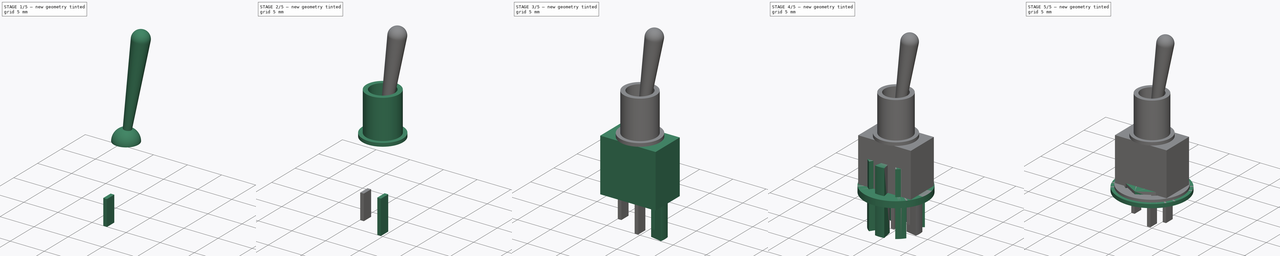
[diagram: build sequence overview — one tinted view per stage of 5, left to right]
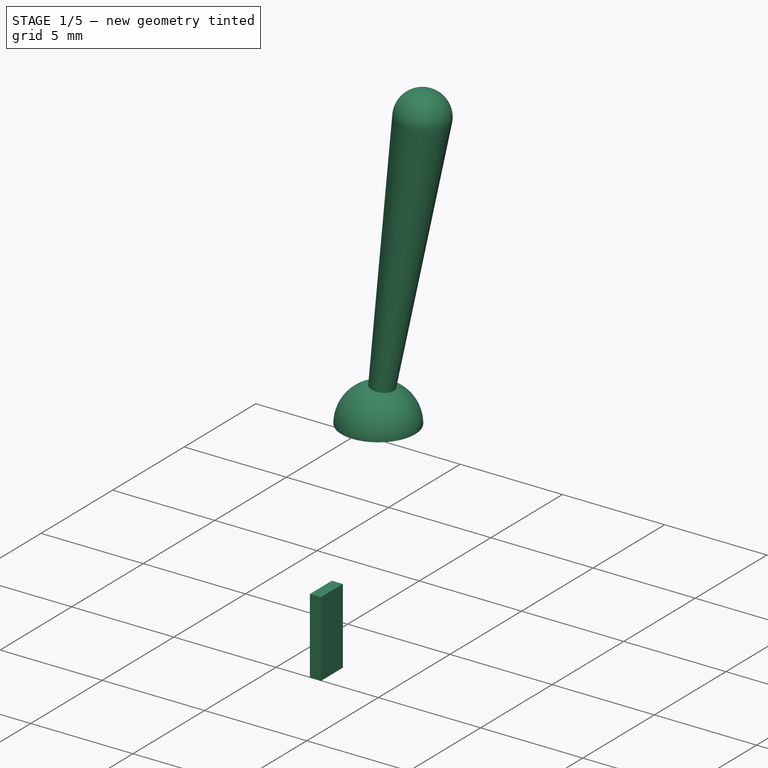
[diagram: stage 1 of 5 — iso view after this stage's code; geometry added in this stage tinted green]
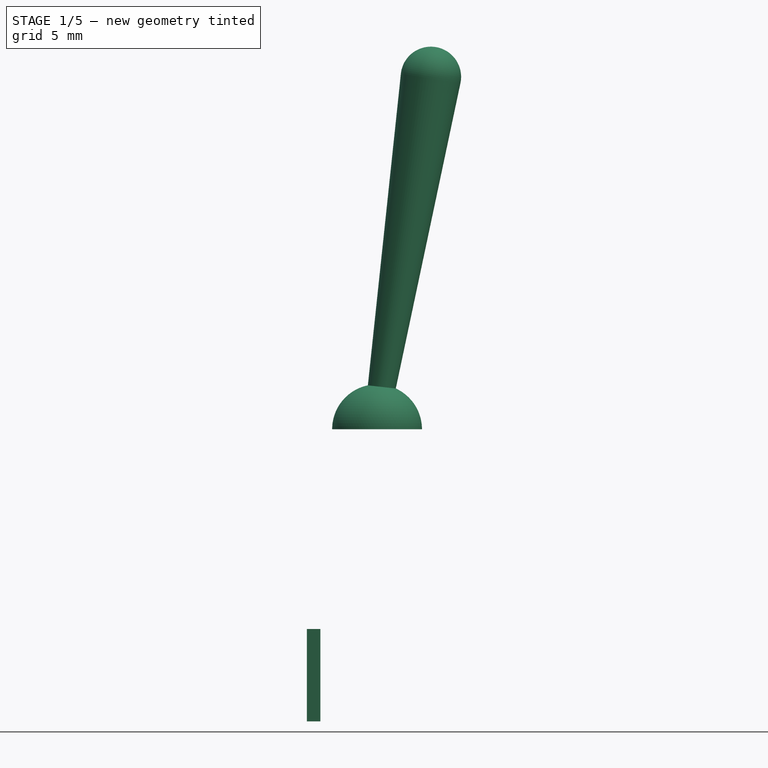
[diagram: stage 1 of 5 — front view after this stage's code; geometry added in this stage tinted green]
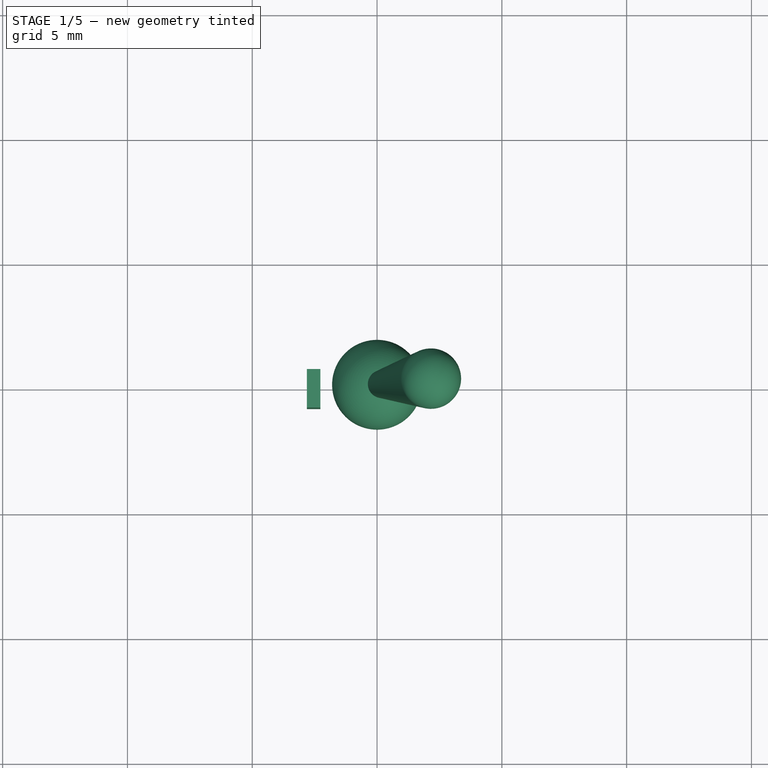
[diagram: stage 1 of 5 — top view after this stage's code; geometry added in this stage tinted green]
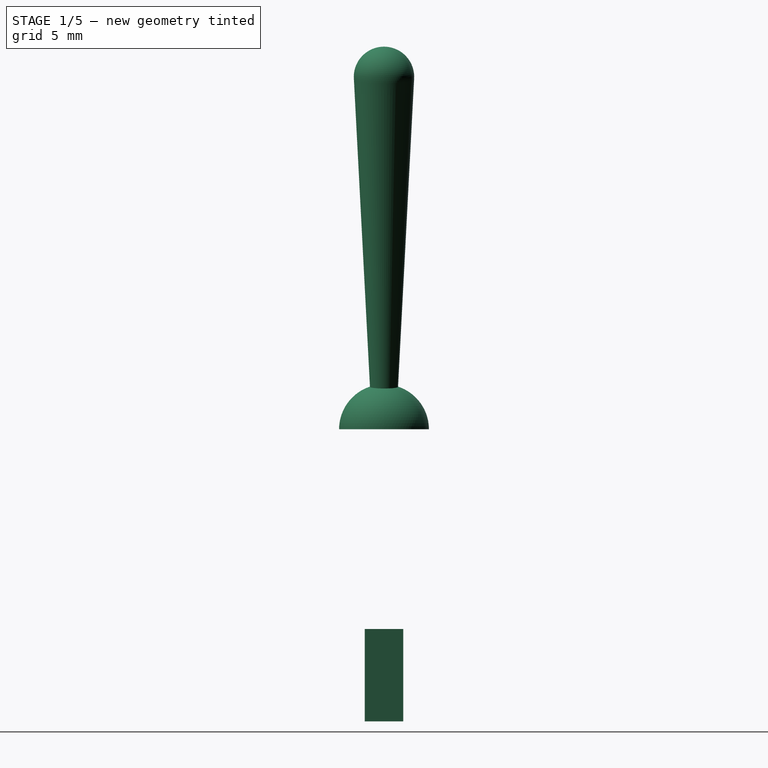
[diagram: stage 1 of 5 — right view after this stage's code; geometry added in this stage tinted green]
FCSTD DOCUMENT  (FreeCAD 0.17R13541 (Git))
Label: Interruptor 250VAC 1A
License: CreativeCommons Attribution
LicenseURL: http://creativecommons.org/licenses/by/4.0/
objects: Sketcher::SketchObject×7, PartDesign::Body×5, Part::Feature×5, PartDesign::Pad×4, Part::Cylinder×4, Part::Box×3, Part::Cut×3, PartDesign::Pocket×2, PartDesign::ShapeBinder×1, Part::Mirroring×1, Part::Sphere×1, PartDesign::Revolution×1, Part::FeaturePython×1, Part::MultiFuse×1, App::DocumentObjectGroup×1
note: 46 computed .brp shape members not serialized (recipe doc carries the construction recipe); baked Part::Feature solids carry a one-line shape summary decoded from their .brp

FEATURE [Part::Box] Box002  label="polo lateral master"
  AttacherType = Attacher::AttachEngine3D
  Height = 3.7
  Length = 0.54
  Placement = pos=(2.27,-0.77,-3.7) rot=(0,0,1;0rad)
  Width = 1.54
FEATURE [Part::Mirroring] Part__Mirroring  label="polo lateral master (Mirror #1)"
  Base = (0,0,0)
  Normal = (1,0,0)
  Source = -> Box002
FEATURE [Part::Sphere] Sphere  label="Esfera"
  Angle1 = 0
  Angle2 = 90
  Angle3 = 360
  AttacherType = Attacher::AttachEngine3D
  Placement = pos=(0,0,8) rot=(0,0,1;0rad)
  Radius = 1.8
FEATURE [Sketcher::SketchObject] Sketch003  label="seccion palanca"
  AttachmentOffset = pos=(0,8.5,0) rot=(0,0,1;-0.15708rad)
  MapMode = 5
  Placement = pos=(0,-1e-12,8.5) rot=(-0.993863,-0.078219,0.078219;4.70623rad)
  Support = -> [XZ_Plane001]
  sketch-geometry (4):
    g0: ArcOfCircle CenterX=0 CenterY=13.79 CenterZ=0 NormalX=0 NormalY=0 NormalZ=1 AngleXU=0 Radius=1.21 StartAngle=6.23162 EndAngle=7.85398
    g1: LineSegment StartX=0 StartY=15 StartZ=0 EndX=0 EndY=0 EndZ=0
    g2: LineSegment StartX=0 StartY=0 StartZ=0 EndX=0.5 EndY=0 EndZ=0
    g3: LineSegment StartX=0.5 StartY=0 StartZ=0 EndX=1.20839 EndY=13.7276 EndZ=0
  constraints (12):
    c: PointOnObject(g0,g-2)
    c: Coincident(g1,g0)
    c: Coincident(g1,g-1)
    c: Vertical(g1)
    c: Coincident(g2,g-1)
    c: Horizontal(g2)
    c: Coincident(g3,g2)
    c: Tangent(g3,g0)
    c: Coincident(g0,g3)
    c: DistanceX(g2,g2) = 0.5
    c: DistanceY(g1,g1) = 15
    c: Radius(g0) = 1.21
FEATURE [PartDesign::Revolution] Revolution  label="Palanca"
  Angle = 360
  Axis = (0.156434,0,0.987688)
  Base = (0,0,8.5)
  Placement = pos=(0,0,0) rot=(1,0,0;1.5708rad)
  Profile = -> Sketch003
  ReferenceAxis = -> Sketch003 [V_Axis]
  Reversed = true
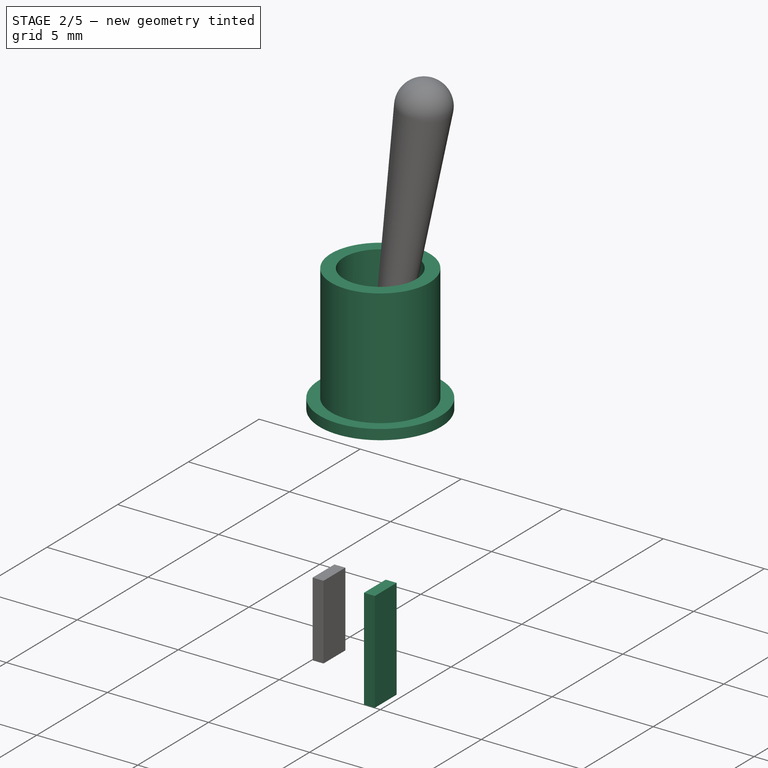
[diagram: stage 2 of 5 — iso view after this stage's code; geometry added in this stage tinted green]
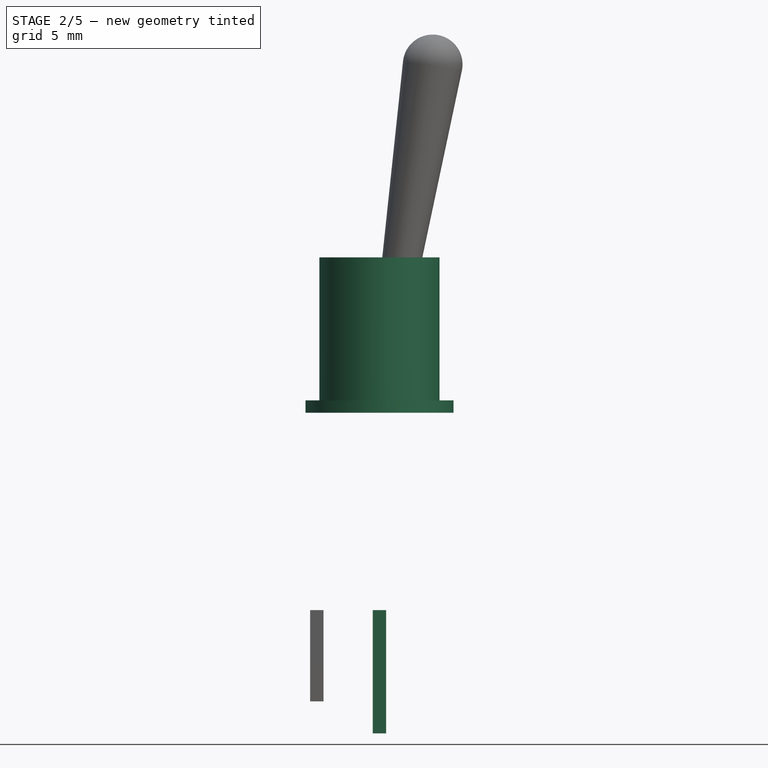
[diagram: stage 2 of 5 — front view after this stage's code; geometry added in this stage tinted green]
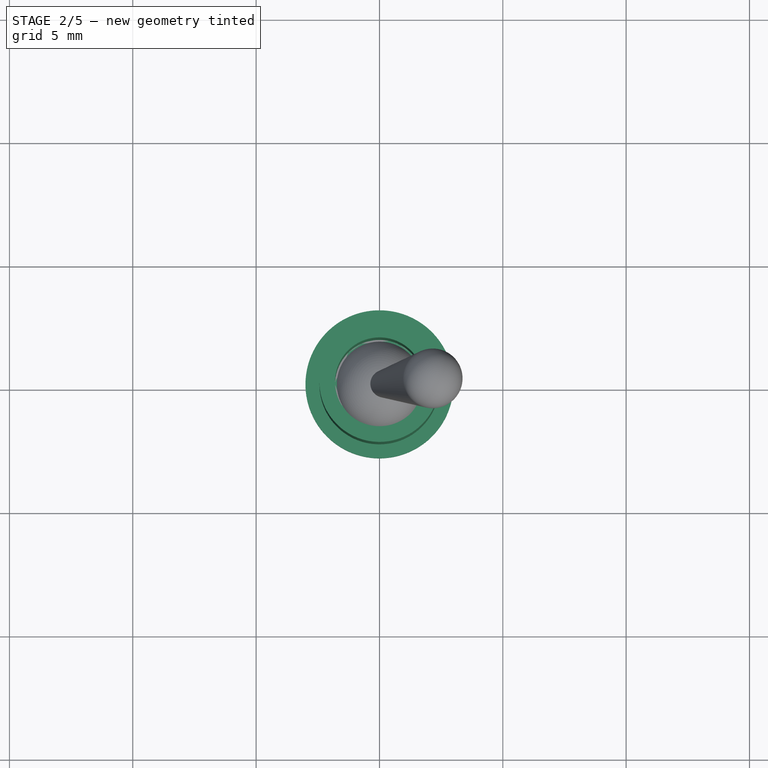
[diagram: stage 2 of 5 — top view after this stage's code; geometry added in this stage tinted green]
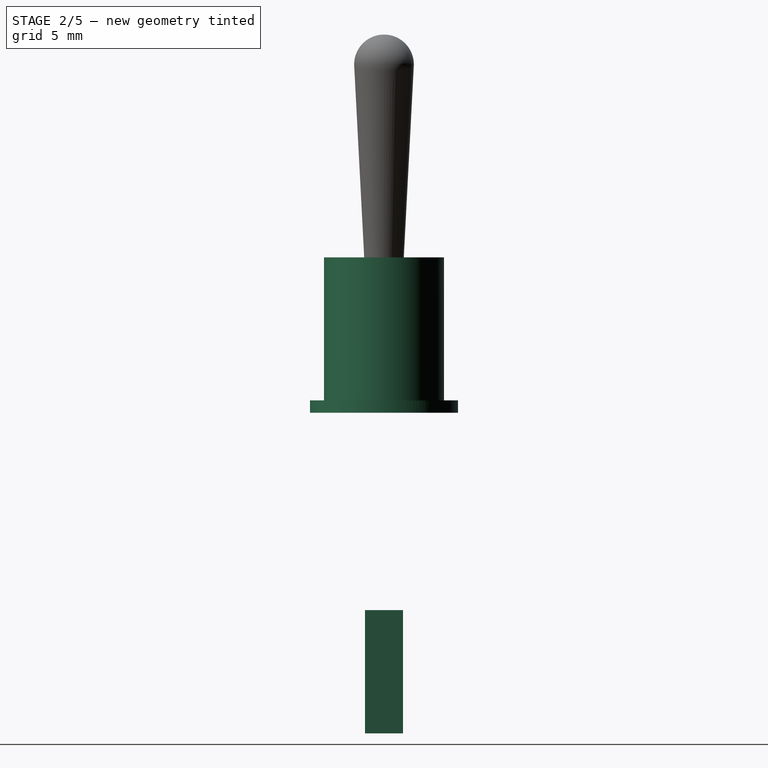
[diagram: stage 2 of 5 — right view after this stage's code; geometry added in this stage tinted green]
FEATURE [PartDesign::ShapeBinder] CopyBox
FEATURE [Sketcher::SketchObject] Sketch
  MapMode = 5
  Placement = pos=(0,0,8) rot=(0,0,1;0rad)
  Support = -> [CopyBox]
  sketch-geometry (1):
    g0: Circle CenterX=0 CenterY=0 CenterZ=0 NormalX=0 NormalY=0 NormalZ=1 AngleXU=0 Radius=3
  constraints (2):
    c: Coincident(g0,g-1)
    c: Radius(g0) = 3
FEATURE [PartDesign::Pad] Pad
  Length = 0.5
  Length2 = 100
  Profile = -> Sketch
  Type = 0
FEATURE [Sketcher::SketchObject] Sketch001
  MapMode = 5
  Placement = pos=(0,0,8.5) rot=(0,0,1;0rad)
  Support = -> [Pad]
  sketch-geometry (1):
    g0: Circle CenterX=0 CenterY=0 CenterZ=0 NormalX=0 NormalY=0 NormalZ=1 AngleXU=0 Radius=2.435
  constraints (2):
    c: Coincident(g0,g-1)
    c: Radius(g0) = 2.435
FEATURE [PartDesign::Pad] Pad001
  BaseFeature = -> Pad
  Length = 5.8
  Length2 = 100
  Profile = -> Sketch001
  Type = 0
FEATURE [Sketcher::SketchObject] Sketch002
  MapMode = 5
  Placement = pos=(0,0,14.3) rot=(0,0,1;0rad)
  Support = -> [Pad001]
  sketch-geometry (1):
    g0: Circle CenterX=0 CenterY=0 CenterZ=0 NormalX=0 NormalY=0 NormalZ=1 AngleXU=0 Radius=1.8
  constraints (2):
    c: Coincident(g0,g-1)
    c: Radius(g0) = 1.8
FEATURE [PartDesign::Pocket] Pocket  label="Corona roscada porta palanca"
  BaseFeature = -> Pad001
  Length = 5.8
  Length2 = 100
  Profile = -> Sketch002
  Type = 0
FEATURE [PartDesign::Body] Body
  Group = -> [CopyBox,Sketch,Pad,Sketch001,Pad001,Sketch002,Pocket]
  Origin = -> Origin
  Tip = -> Pocket
FEATURE [Part::Box] Box001  label="Polo central"
  AttacherType = Attacher::AttachEngine3D
  Height = 5
  Length = 0.54
  Placement = pos=(-0.27,-0.77,-5) rot=(0,0,1;0rad)
  Width = 1.54
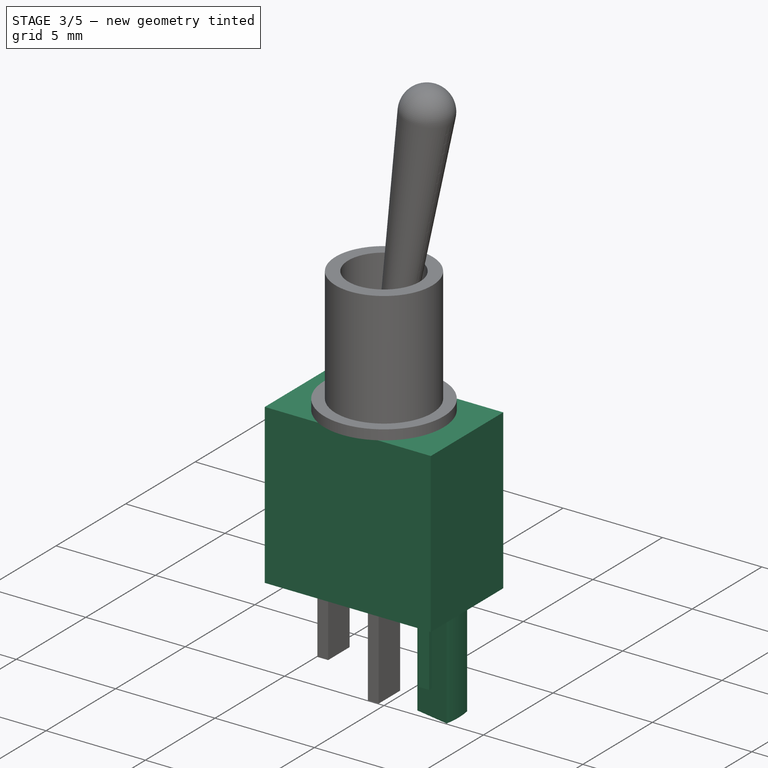
[diagram: stage 3 of 5 — iso view after this stage's code; geometry added in this stage tinted green]
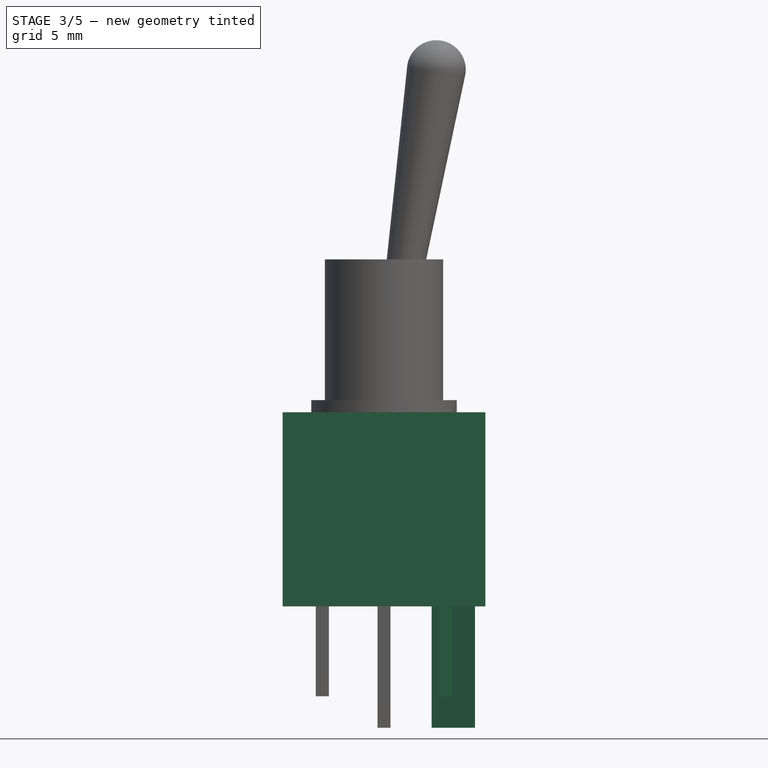
[diagram: stage 3 of 5 — front view after this stage's code; geometry added in this stage tinted green]
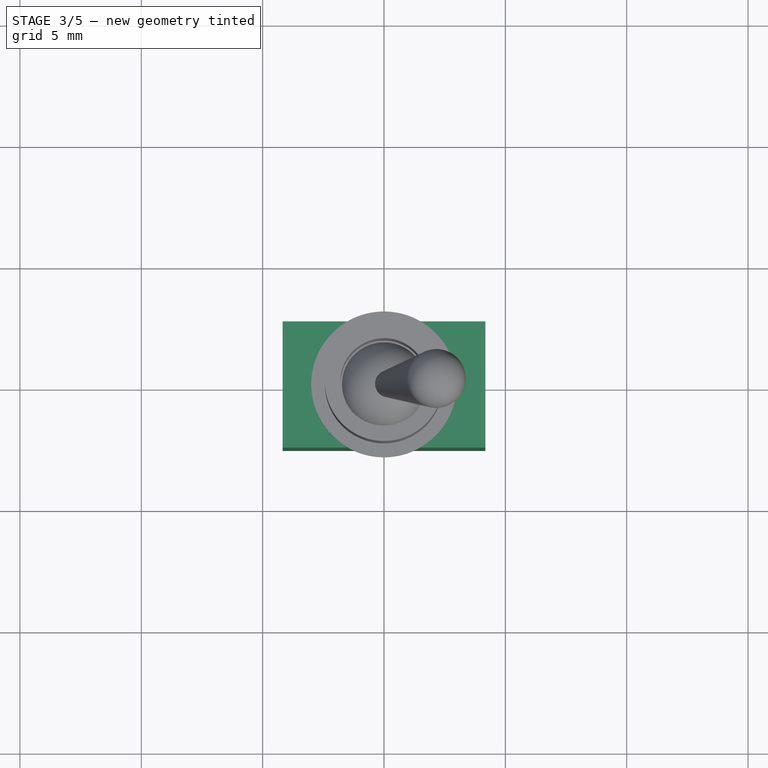
[diagram: stage 3 of 5 — top view after this stage's code; geometry added in this stage tinted green]
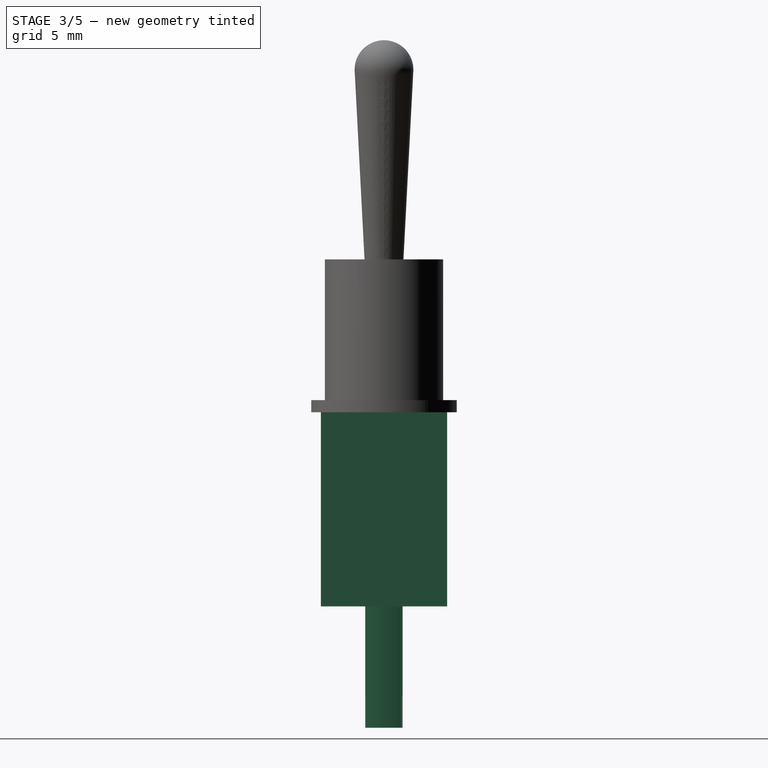
[diagram: stage 3 of 5 — right view after this stage's code; geometry added in this stage tinted green]
FEATURE [Part::Box] Box  label="cubo central interruptor"
  AttacherType = Attacher::AttachEngine3D
  Height = 8
  Length = 8.35
  Placement = pos=(-4.175,-2.6,0) rot=(0,0,1;0rad)
  Width = 5.2
FEATURE [Part::Cylinder] Cylinder002  label="sector 22.5º"
  Angle = 22.5
  AttacherType = Attacher::AttachEngine3D
  Height = 10
  Radius = 3.75
FEATURE [Part::Cylinder] Cylinder003  label="vaciado sector"
  Angle = 360
  AttacherType = Attacher::AttachEngine3D
  Height = 10
  Radius = 2
FEATURE [Part::Cut] Cut001  label="Sector master"
  Base = -> Cylinder002
  Placement = pos=(0,0,-5) rot=(0,0,1;-0.200713rad)
  Refine = true
  Tool = -> Cylinder003
FEATURE [Part::Feature] Cut002001  label="Arandela de freno"
  Placement = pos=(0,0,10.53) rot=(0,0,1;0rad)
  shape: bbox 10 x 10 x 1 mm, 35 faces (baked)
FEATURE [Part::Feature] Pad003001  label="Arandela plana"
  Placement = pos=(0,0,9.93) rot=(0,0,1;0rad)
  shape: bbox 11 x 11 x 0.6 mm, 4 faces (baked)
FEATURE [Part::MultiFuse] Fusion  label="Fusion interruptor"
  Refine = true
  Shapes = -> [Pocket,Sphere,Revolution,Box,Box002,Part__Mirroring,Box001]
FEATURE [Part::Feature] Fusion001  label="Interruptor"
  shape: bbox 8.35 x 6 x 28.33 mm, 33 faces (baked)
FEATURE [App::DocumentObjectGroup] Grupo  label="Copias simples Interruptor"
  Group = -> [Cut002001,Pocket001001001,Pocket001001,Pad003001,Fusion001]
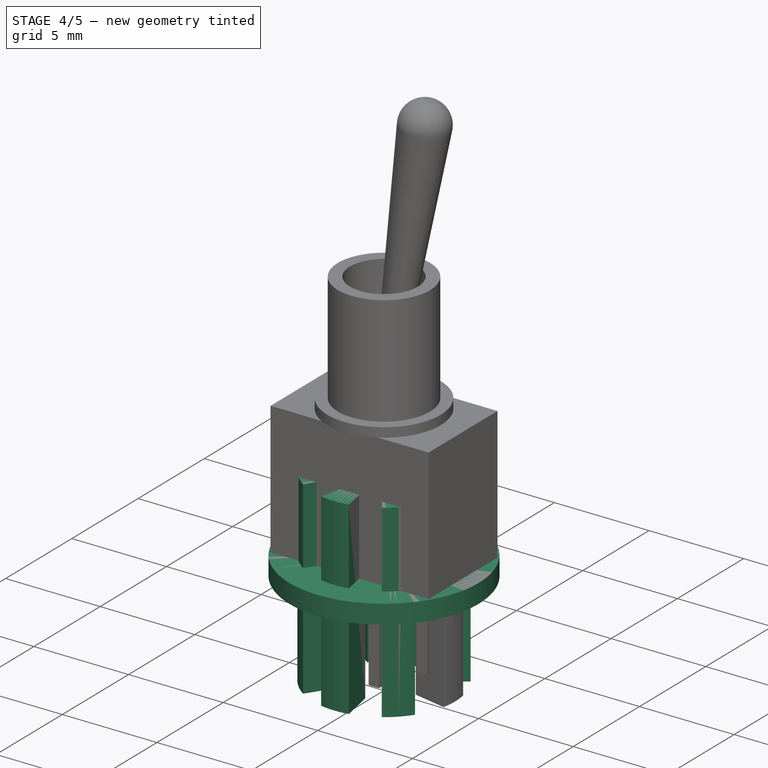
[diagram: stage 4 of 5 — iso view after this stage's code; geometry added in this stage tinted green]
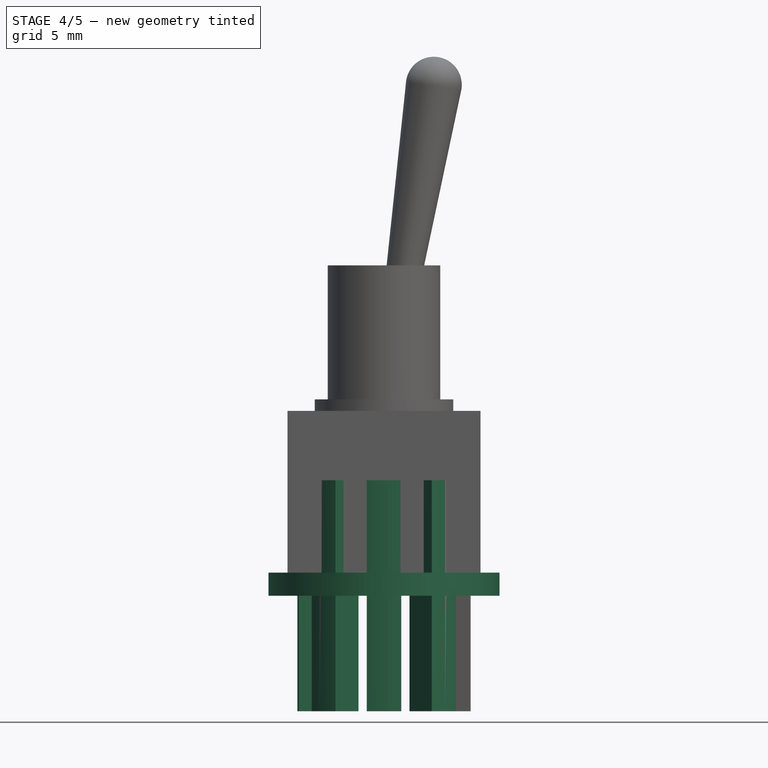
[diagram: stage 4 of 5 — front view after this stage's code; geometry added in this stage tinted green]
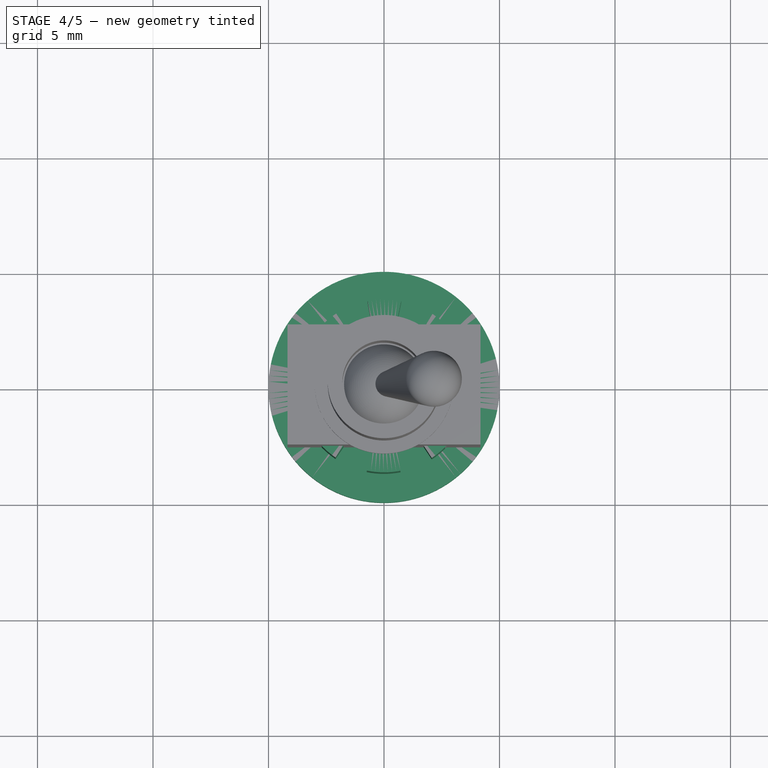
[diagram: stage 4 of 5 — top view after this stage's code; geometry added in this stage tinted green]
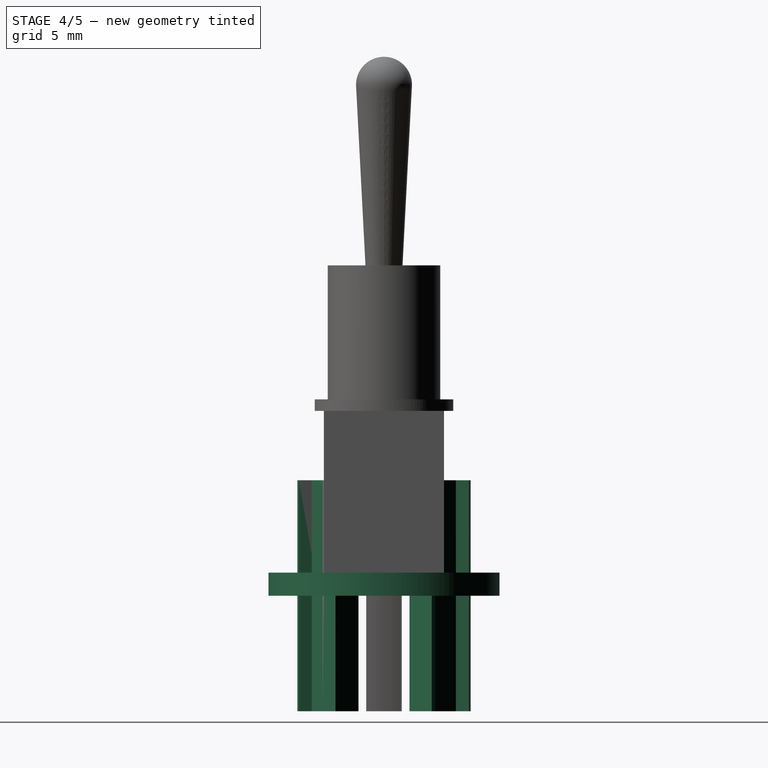
[diagram: stage 4 of 5 — right view after this stage's code; geometry added in this stage tinted green]
FEATURE [PartDesign::Body] Body003  label="Body arandela plana"
  Group = -> [Sketch006,Pad003]
  Origin = -> Origin003
  Tip = -> Pad003
FEATURE [PartDesign::Body] Body004  label="Body arandela de freno"
  Origin = -> Origin004
FEATURE [Part::Cylinder] Cylinder  label="Cilindro exterior arandela freno"
  Angle = 360
  AttacherType = Attacher::AttachEngine3D
  Height = 1
  Radius = 5
FEATURE [Part::Cylinder] Cylinder001  label="vaciado interior arandela freno"
  Angle = 360
  AttacherType = Attacher::AttachEngine3D
  Height = 2
  Placement = pos=(0,0,-0.5) rot=(0,0,1;0rad)
  Radius = 2.65
FEATURE [Part::Cut] Cut  label="Aradela de freno sin ranuras"
  Base = -> Cylinder
  Refine = true
  Tool = -> Cylinder001
FEATURE [Part::FeaturePython] Array  label="Array vaciado 8 sectores"  # Draft array (typed FeaturePython)
  Angle = 360
  ArrayType = 1
  Axis = (0,0,1)
  Base = -> Cut001
  Center = (0,0,0)
  Fuse = false
  IntervalAxis = (0,0,0)
  IntervalX = (1,0,0)
  IntervalY = (0,1,0)
  IntervalZ = (0,0,0)
  NumberPolar = 8
  NumberX = 2
  NumberY = 2
  NumberZ = 1
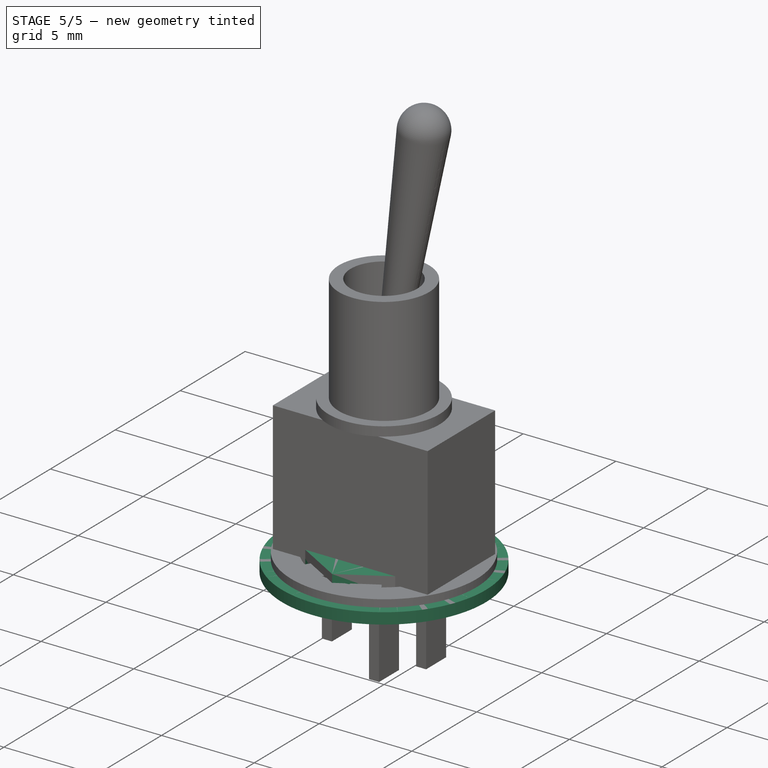
[diagram: stage 5 of 5 — iso view after this stage's code; geometry added in this stage tinted green]
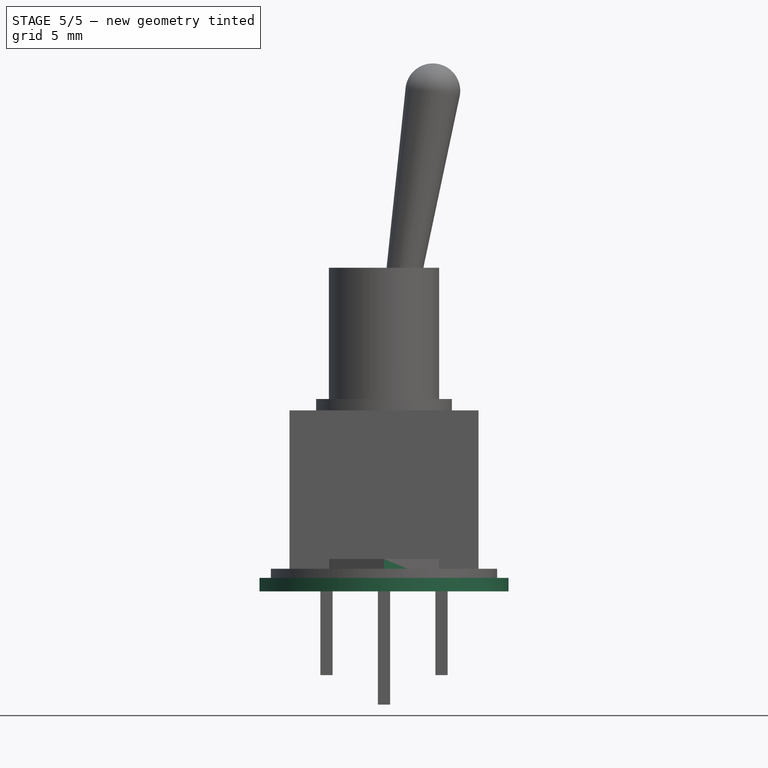
[diagram: stage 5 of 5 — front view after this stage's code; geometry added in this stage tinted green]
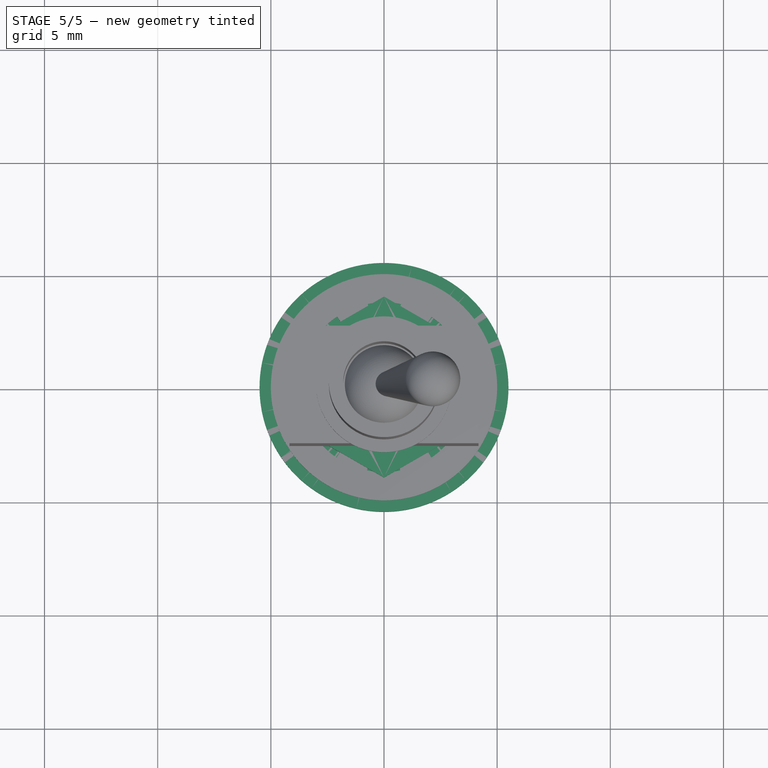
[diagram: stage 5 of 5 — top view after this stage's code; geometry added in this stage tinted green]
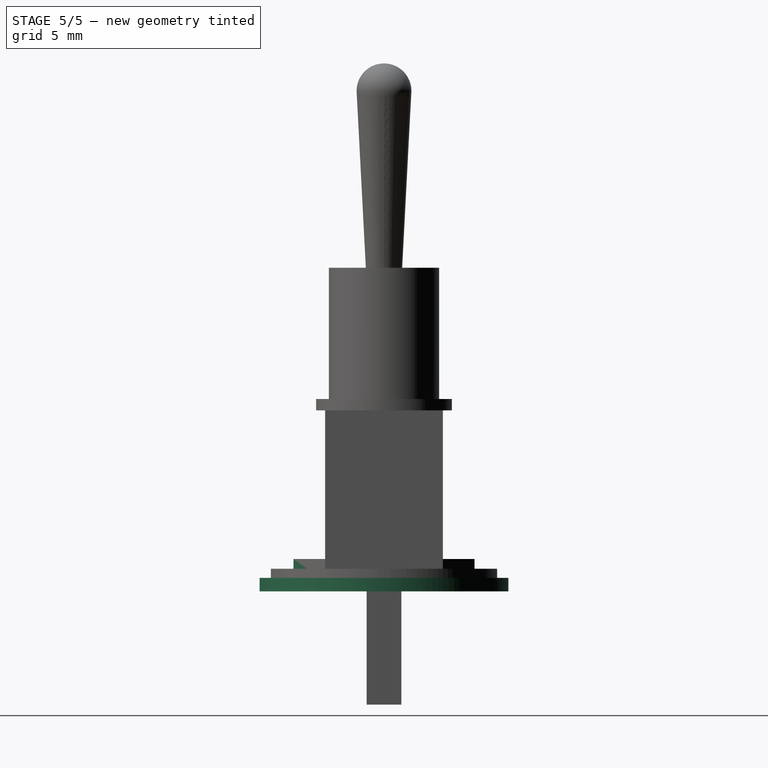
[diagram: stage 5 of 5 — right view after this stage's code; geometry added in this stage tinted green]
FEATURE [PartDesign::Body] Body001  label="Body palanca"
  Group = -> [Sketch003,Revolution]
  Origin = -> Origin001
  Tip = -> Revolution
FEATURE [Sketcher::SketchObject] Sketch004  label="Sketch tuerca"
  MapMode = 5
  Support = -> [XY_Plane002]
  sketch-geometry (7):
    g0: LineSegment StartX=0 StartY=4 StartZ=0 EndX=-3.4641 EndY=2 EndZ=0
    g1: LineSegment StartX=-3.4641 StartY=2 StartZ=0 EndX=-3.4641 EndY=-2 EndZ=0
    g2: LineSegment StartX=-3.4641 StartY=-2 StartZ=0 EndX=-7e-12 EndY=-4 EndZ=0
    g3: LineSegment StartX=-7e-12 StartY=-4 StartZ=0 EndX=3.4641 EndY=-2 EndZ=0
    g4: LineSegment StartX=3.4641 StartY=-2 StartZ=0 EndX=3.4641 EndY=2 EndZ=0
    g5: LineSegment StartX=3.4641 StartY=2 StartZ=0 EndX=0 EndY=4 EndZ=0
    g6: Circle [constr] CenterX=0 CenterY=0 CenterZ=0 NormalX=0 NormalY=0 NormalZ=1 AngleXU=0 Radius=4
  constraints (16):
    c: Coincident(g0,g1)
    c: Coincident(g1,g2)
    c: Coincident(g2,g3)
    c: Coincident(g3,g4)
    c: Coincident(g4,g5)
    c: Coincident(g5,g0)
    c: Equal(g0, g1-g5) x5
    c: PointOnObject(g0,g6)
    c: PointOnObject(g1,g6)
    c: PointOnObject(g2,g6)
    c: PointOnObject(g3,g6)
    c: PointOnObject(g4,g6)
    c: PointOnObject(g5,g6)
    c: Coincident(g6,g-1)
    c: PointOnObject(g5,g-2)
    c: Radius(g6) = 4
FEATURE [PartDesign::Pad] Pad002
  Length = 1.43
  Length2 = 100
  Profile = -> Sketch004
  Type = 0
FEATURE [Sketcher::SketchObject] Sketch005
  MapMode = 5
  Placement = pos=(0,0,1.43) rot=(0,0,1;0rad)
  Support = -> [Pad002]
  sketch-geometry (1):
    g0: Circle CenterX=0 CenterY=0 CenterZ=0 NormalX=0 NormalY=0 NormalZ=1 AngleXU=0 Radius=2.44
  constraints (2):
    c: Coincident(g0,g-1)
    c: Radius(g0) = 2.44
FEATURE [PartDesign::Pocket] Pocket001  label="Tuerca master"
  BaseFeature = -> Pad002
  Length = 5
  Length2 = 100
  Profile = -> Sketch005
  Type = 0
FEATURE [PartDesign::Body] Body002  label="Body tuerca hexagonal"
  Group = -> [Sketch004,Pad002,Sketch005,Pocket001]
  Origin = -> Origin002
  Tip = -> Pocket001
FEATURE [Part::Feature] Pocket001001  label="Tuerca inferior"
  Placement = pos=(0,0,8.5) rot=(0,0,1;0rad)
  shape: bbox 6.928 x 8 x 1.43 mm, 9 faces (baked)
FEATURE [Part::Feature] Pocket001001001  label="Tuerca superior"
  Placement = pos=(0,0,11.53) rot=(0,0,1;0rad)
  shape: bbox 6.928 x 8 x 1.43 mm, 9 faces (baked)
FEATURE [Sketcher::SketchObject] Sketch006  label="Sketch arandela plana"
  MapMode = 5
  Support = -> [XY_Plane003]
  sketch-geometry (2):
    g0: Circle CenterX=0 CenterY=0 CenterZ=0 NormalX=0 NormalY=0 NormalZ=1 AngleXU=0 Radius=5.5
    g1: Circle CenterX=0 CenterY=0 CenterZ=0 NormalX=0 NormalY=0 NormalZ=1 AngleXU=0 Radius=2.5
  constraints (4):
    c: Coincident(g0,g-1)
    c: Coincident(g1,g-1)
    c: Radius(g0) = 5.5
    c: Radius(g1) = 2.5
FEATURE [PartDesign::Pad] Pad003  label="Arandela plana master "
  Length = 0.6
  Length2 = 100
  Profile = -> Sketch006
  Type = 0
FEATURE [Part::Cut] Cut002  label="Master Arandela de freno"
  Base = -> Cut
  Refine = true
  Tool = -> Array
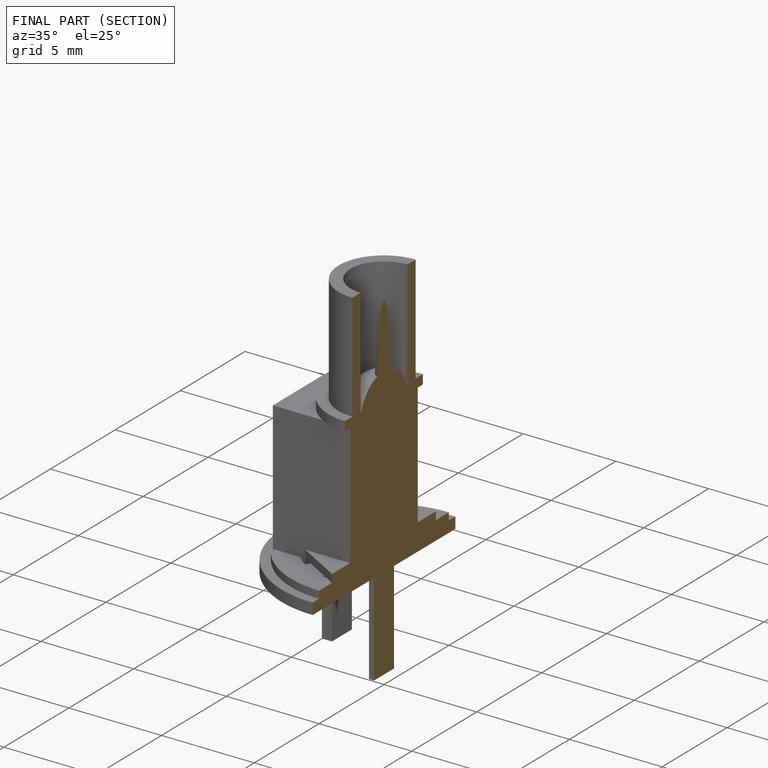
[diagram: finished part — half-section view (interior)]
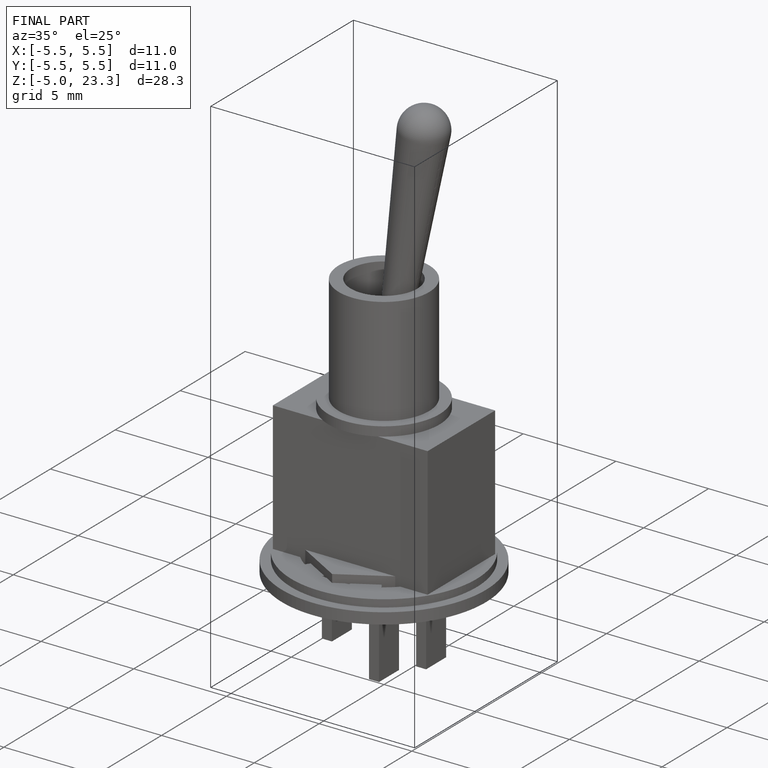
[diagram: finished part — iso view with bounding-box wireframe]
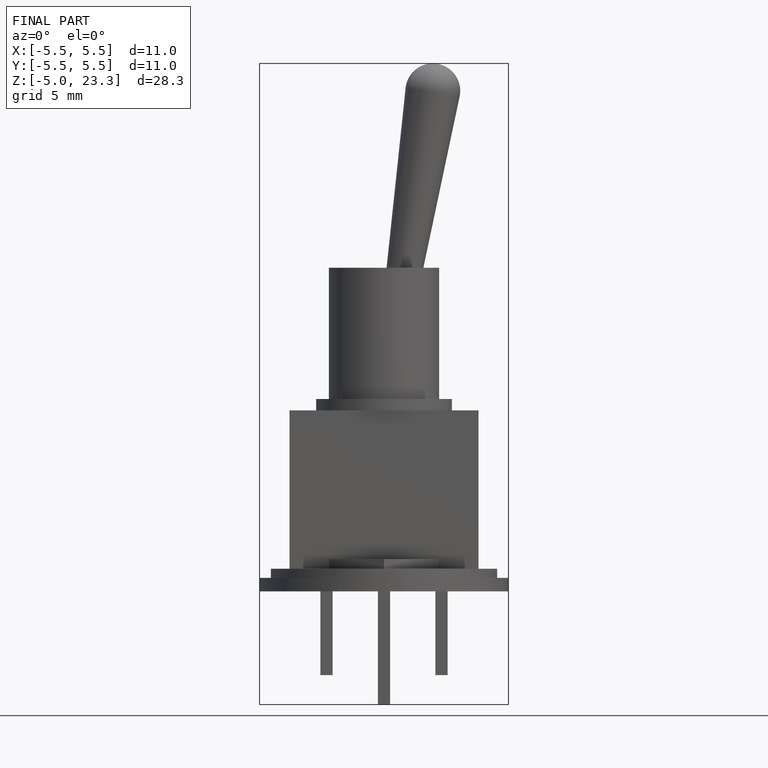
[diagram: finished part — front view with bounding-box wireframe]
